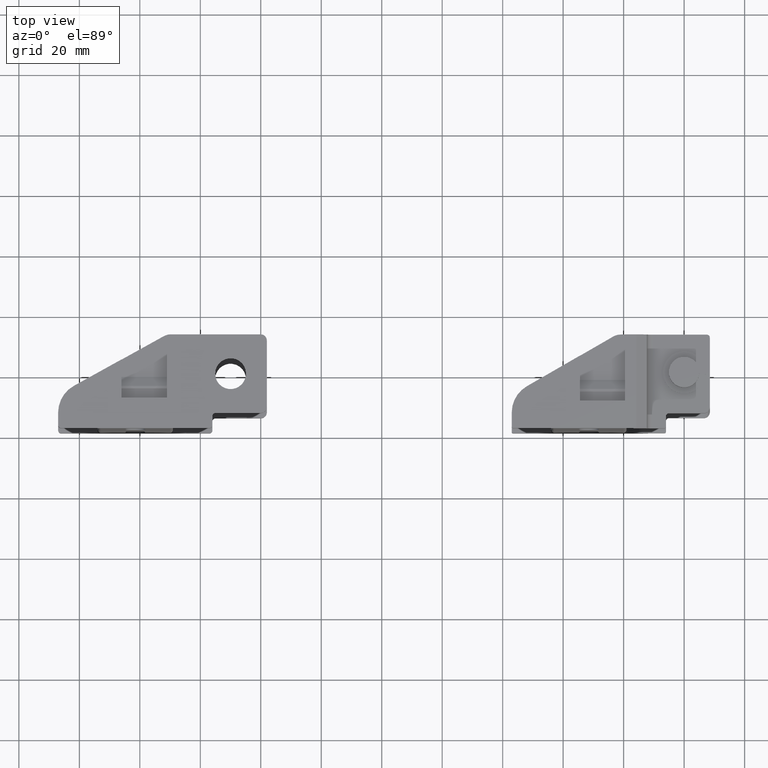
[diagram: clean part render]
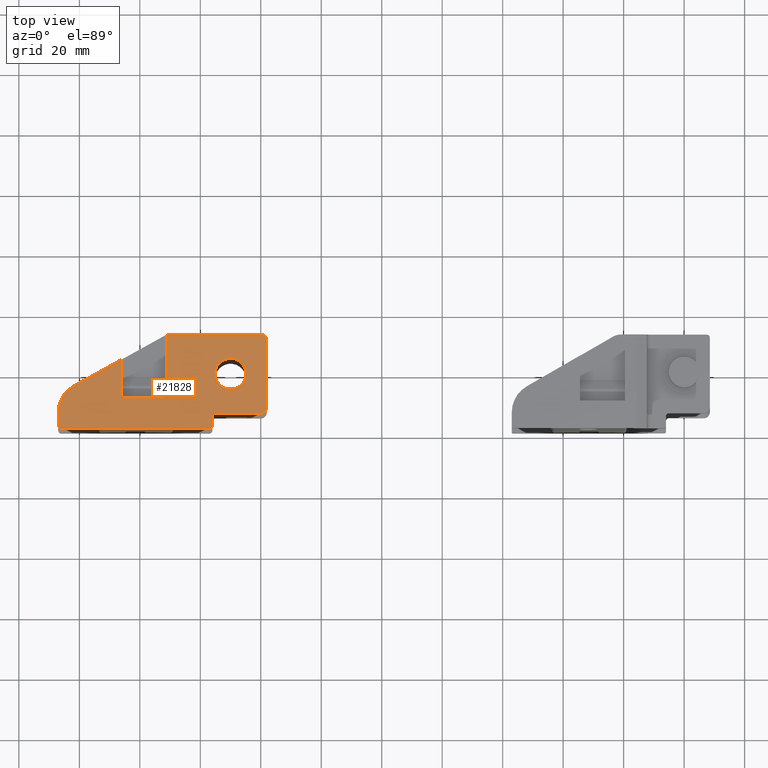
[diagram: same view with one face highlighted and labeled with its STEP entity id]
A machine part, top view. The second image highlights one B-rep face of the part: STEP entity #21828.
In plain terms, the highlighted planar face has unit normal (0, 0, 1).
Its self-contained STEP definition (entity closure, byte-faithful):
#159 = CARTESIAN_POINT ( 'NONE',  ( -137.9999999999999716, 10.49999999999999822, 52.50000000000000711 ) ) ;
#217 = EDGE_CURVE ( 'NONE', #4094, #23349, #16264, .T. ) ;
#258 = DIRECTION ( 'NONE',  ( 0.000000000000000000, 1.000000000000000000, 0.000000000000000000 ) ) ;
#763 = EDGE_LOOP ( 'NONE', ( #911 ) ) ;
#794 = VECTOR ( 'NONE', #22860, 1000.000000000000000 ) ;
#881 = EDGE_LOOP ( 'NONE', ( #17347, #5475, #22748, #17102, #5760, #4768, #21252, #18897, #16718, #8381, #18245, #12936, #17340, #4201, #9770, #12823, #14052 ) ) ;
#911 = ORIENTED_EDGE ( 'NONE', *, *, #11107, .T. ) ;
#1015 = LINE ( 'NONE', #17470, #10334 ) ;
#1198 = LINE ( 'NONE', #17316, #18193 ) ;
#1230 = VERTEX_POINT ( 'NONE', #20516 ) ;
#1458 = EDGE_CURVE ( 'NONE', #12134, #1230, #10462, .T. ) ;
#1605 = VERTEX_POINT ( 'NONE', #18581 ) ;
#1630 = CARTESIAN_POINT ( 'NONE',  ( -155.9999999999999716, -14.49999999999999822, 52.50000000000000711 ) ) ;
#1642 = VECTOR ( 'NONE', #8900, 1000.000000000000000 ) ;
#1915 = FACE_OUTER_BOUND ( 'NONE', #881, .T. ) ;
#2025 = EDGE_CURVE ( 'NONE', #16472, #17944, #4279, .T. ) ;
#2161 = CARTESIAN_POINT ( 'NONE',  ( -186.0999999999999943, 4.185364228208289461, 52.50000000000000711 ) ) ;
#2221 = CARTESIAN_POINT ( 'NONE',  ( -155.9999999999999716, -14.49999999999999822, 52.50000000000000711 ) ) ;
#2351 = VERTEX_POINT ( 'NONE', #2221 ) ;
#2370 = CIRCLE ( 'NONE', #15672, 10.00000000000071054 ) ;
#2527 = VECTOR ( 'NONE', #5725, 1000.000000000000000 ) ;
#2600 = VERTEX_POINT ( 'NONE', #15907 ) ;
#2811 = VERTEX_POINT ( 'NONE', #15182 ) ;
#2812 = VECTOR ( 'NONE', #14942, 1000.000000000000227 ) ;
#3091 = DIRECTION ( 'NONE',  ( 7.438494265013675240E-13, 1.000000000000000000, 0.000000000000000000 ) ) ;
#3095 = CARTESIAN_POINT ( 'NONE',  ( -149.9999999999999716, -0.5000000000000004441, 52.50000000000000711 ) ) ;
#3219 = DIRECTION ( 'NONE',  ( -1.000000000000000000, 0.000000000000000000, 0.000000000000000000 ) ) ;
#3355 = AXIS2_PLACEMENT_3D ( 'NONE', #3095, #7025, #3219 ) ;
#3409 = EDGE_CURVE ( 'NONE', #10348, #4094, #2370, .T. ) ;
#3451 = VECTOR ( 'NONE', #5922, 1000.000000000000000 ) ;
#3616 = CARTESIAN_POINT ( 'NONE',  ( -140.0000000000002842, 10.49999999999968026, 52.50000000000000711 ) ) ;
#3776 = LINE ( 'NONE', #22016, #3451 ) ;
#3959 = CARTESIAN_POINT ( 'NONE',  ( -155.0000000000006537, -14.49999999999929834, 52.50000000000000711 ) ) ;
#4076 = DIRECTION ( 'NONE',  ( 0.000000000000000000, -1.000000000000000000, 0.000000000000000000 ) ) ;
#4094 = VERTEX_POINT ( 'NONE', #18604 ) ;
#4201 = ORIENTED_EDGE ( 'NONE', *, *, #2025, .F. ) ;
#4279 = LINE ( 'NONE', #20736, #794 ) ;
#4317 = EDGE_CURVE ( 'NONE', #2351, #22924, #10338, .T. ) ;
#4351 = CARTESIAN_POINT ( 'NONE',  ( -206.0000000000000000, -18.50000000000000355, 52.50000000000000711 ) ) ;
#4373 = DIRECTION ( 'NONE',  ( 0.000000000000000000, 1.000000000000000000, 0.000000000000000000 ) ) ;
#4768 = ORIENTED_EDGE ( 'NONE', *, *, #9221, .F. ) ;
#4960 = LINE ( 'NONE', #12198, #22654 ) ;
#5475 = ORIENTED_EDGE ( 'NONE', *, *, #217, .F. ) ;
#5725 = DIRECTION ( 'NONE',  ( -1.000000000000000000, 0.000000000000000000, 0.000000000000000000 ) ) ;
#5760 = ORIENTED_EDGE ( 'NONE', *, *, #11039, .F. ) ;
#5922 = DIRECTION ( 'NONE',  ( 0.000000000000000000, -1.000000000000000000, 0.000000000000000000 ) ) ;
#6021 = CARTESIAN_POINT ( 'NONE',  ( -139.9999999999999716, 12.49999999999999645, 52.50000000000000711 ) ) ;
#6288 = EDGE_CURVE ( 'NONE', #6387, #2351, #10026, .T. ) ;
#6387 = VERTEX_POINT ( 'NONE', #10477 ) ;
#6724 = CARTESIAN_POINT ( 'NONE',  ( -156.9999999999999716, -18.50000000000000355, 52.50000000000000711 ) ) ;
#6787 = AXIS2_PLACEMENT_3D ( 'NONE', #16070, #16195, #16315 ) ;
#7025 = DIRECTION ( 'NONE',  ( 0.000000000000000000, 0.000000000000000000, -1.000000000000000000 ) ) ;
#7085 = VERTEX_POINT ( 'NONE', #19235 ) ;
#8093 = CIRCLE ( 'NONE', #15686, 0.9999999999993069988 ) ;
#8337 = CARTESIAN_POINT ( 'NONE',  ( -156.9999999999993179, -17.50000000000070344, 52.50000000000000711 ) ) ;
#8381 = ORIENTED_EDGE ( 'NONE', *, *, #14447, .F. ) ;
#8714 = DIRECTION ( 'NONE',  ( 1.000000000000000000, 0.000000000000000000, 0.000000000000000000 ) ) ;
#8900 = DIRECTION ( 'NONE',  ( 0.000000000000000000, -1.000000000000000000, 0.000000000000000000 ) ) ;
#9221 = EDGE_CURVE ( 'NONE', #10612, #11557, #1198, .T. ) ;
#9413 = LINE ( 'NONE', #22066, #2527 ) ;
#9472 = CARTESIAN_POINT ( 'NONE',  ( -201.8480962024629832, -4.543948039966001495, 52.50000000000000711 ) ) ;
#9476 = EDGE_CURVE ( 'NONE', #23082, #12134, #9890, .T. ) ;
#9770 = ORIENTED_EDGE ( 'NONE', *, *, #18367, .F. ) ;
#9890 = LINE ( 'NONE', #22660, #12099 ) ;
#10026 = CIRCLE ( 'NONE', #14969, 0.9999999999993069988 ) ;
#10334 = VECTOR ( 'NONE', #4373, 1000.000000000000000 ) ;
#10338 = LINE ( 'NONE', #1630, #1642 ) ;
#10348 = VERTEX_POINT ( 'NONE', #18058 ) ;
#10462 = CIRCLE ( 'NONE', #13510, 2.000000000000324629 ) ;
#10477 = CARTESIAN_POINT ( 'NONE',  ( -154.9999999999999716, -13.49999999999999822, 52.50000000000000711 ) ) ;
#10479 = DIRECTION ( 'NONE',  ( 0.000000000000000000, 0.000000000000000000, -1.000000000000000000 ) ) ;
#10612 = VERTEX_POINT ( 'NONE', #6724 ) ;
#10805 = EDGE_CURVE ( 'NONE', #2600, #23349, #22328, .T. ) ;
#11039 = EDGE_CURVE ( 'NONE', #11557, #2811, #11733, .T. ) ;
#11107 = EDGE_CURVE ( 'NONE', #19149, #19149, #20492, .T. ) ;
#11557 = VERTEX_POINT ( 'NONE', #4351 ) ;
#11609 = EDGE_CURVE ( 'NONE', #17944, #23082, #20135, .T. ) ;
#11733 = CIRCLE ( 'NONE', #6787, 0.9999999999984465759 ) ;
#11799 = DIRECTION ( 'NONE',  ( 0.000000000000000000, 0.000000000000000000, -1.000000000000000000 ) ) ;
#12099 = VECTOR ( 'NONE', #4076, 1000.000000000000000 ) ;
#12109 = AXIS2_PLACEMENT_3D ( 'NONE', #3616, #16345, #12411 ) ;
#12134 = VERTEX_POINT ( 'NONE', #23315 ) ;
#12198 = CARTESIAN_POINT ( 'NONE',  ( -171.0999999999999659, -8.500000000000000000, 52.50000000000000711 ) ) ;
#12411 = DIRECTION ( 'NONE',  ( 1.000000000000000000, 1.630640067417925786E-13, 0.000000000000000000 ) ) ;
#12469 = CARTESIAN_POINT ( 'NONE',  ( -140.0000000000002842, -11.49999999999967670, 52.50000000000000711 ) ) ;
#12581 = DIRECTION ( 'NONE',  ( 0.000000000000000000, 0.000000000000000000, -1.000000000000000000 ) ) ;
#12823 = ORIENTED_EDGE ( 'NONE', *, *, #16686, .T. ) ;
#12870 = DIRECTION ( 'NONE',  ( 0.000000000000000000, 0.000000000000000000, 1.000000000000000000 ) ) ;
#12936 = ORIENTED_EDGE ( 'NONE', *, *, #9476, .F. ) ;
#13005 = AXIS2_PLACEMENT_3D ( 'NONE', #13585, #11799, #3091 ) ;
#13510 = AXIS2_PLACEMENT_3D ( 'NONE', #12469, #12581, #16535 ) ;
#13585 = CARTESIAN_POINT ( 'NONE',  ( -169.8069120782247410, 7.500000000016888713, 52.50000000000000711 ) ) ;
#13749 = CARTESIAN_POINT ( 'NONE',  ( -155.9999999999999716, -17.50000000000000000, 52.50000000000000711 ) ) ;
#14052 = ORIENTED_EDGE ( 'NONE', *, *, #22841, .T. ) ;
#14147 = CIRCLE ( 'NONE', #13005, 4.999999999983110399 ) ;
#14347 = DIRECTION ( 'NONE',  ( -0.4848096202463364479, 0.8746197071393961853, 0.000000000000000000 ) ) ;
#14447 = EDGE_CURVE ( 'NONE', #1230, #6387, #9413, .T. ) ;
#14776 = DIRECTION ( 'NONE',  ( -6.938893903912036769E-13, -1.000000000000000000, 0.000000000000000000 ) ) ;
#14942 = DIRECTION ( 'NONE',  ( 0.8746197071393941869, 0.4848096202463400006, 0.000000000000000000 ) ) ;
#14969 = AXIS2_PLACEMENT_3D ( 'NONE', #3959, #12870, #14776 ) ;
#15092 = CARTESIAN_POINT ( 'NONE',  ( -155.0999999999999659, -0.5000000000000004441, 52.50000000000000711 ) ) ;
#15182 = CARTESIAN_POINT ( 'NONE',  ( -207.0000000000000000, -17.50000000000000000, 52.50000000000000711 ) ) ;
#15672 = AXIS2_PLACEMENT_3D ( 'NONE', #22950, #16140, #14347 ) ;
#15686 = AXIS2_PLACEMENT_3D ( 'NONE', #8337, #10479, #21456 ) ;
#15907 = CARTESIAN_POINT ( 'NONE',  ( -186.0999999999999943, -8.500000000000000000, 52.50000000000000711 ) ) ;
#16070 = CARTESIAN_POINT ( 'NONE',  ( -206.0000000000014779, -17.50000000000155609, 52.50000000000000711 ) ) ;
#16140 = DIRECTION ( 'NONE',  ( 0.000000000000000000, 0.000000000000000000, -1.000000000000000000 ) ) ;
#16195 = DIRECTION ( 'NONE',  ( 0.000000000000000000, 0.000000000000000000, -1.000000000000000000 ) ) ;
#16264 = LINE ( 'NONE', #9472, #2812 ) ;
#16315 = DIRECTION ( 'NONE',  ( -1.000000000000000000, 1.543903893621756653E-12, 0.000000000000000000 ) ) ;
#16345 = DIRECTION ( 'NONE',  ( 0.000000000000000000, 0.000000000000000000, -1.000000000000000000 ) ) ;
#16472 = VERTEX_POINT ( 'NONE', #17835 ) ;
#16535 = DIRECTION ( 'NONE',  ( 1.665334536937464452E-13, -1.000000000000000000, 0.000000000000000000 ) ) ;
#16686 = EDGE_CURVE ( 'NONE', #1605, #7085, #3776, .T. ) ;
#16718 = ORIENTED_EDGE ( 'NONE', *, *, #6288, .F. ) ;
#17102 = ORIENTED_EDGE ( 'NONE', *, *, #17703, .F. ) ;
#17316 = CARTESIAN_POINT ( 'NONE',  ( -156.9999999999999716, -18.50000000000000355, 52.50000000000000711 ) ) ;
#17340 = ORIENTED_EDGE ( 'NONE', *, *, #11609, .F. ) ;
#17347 = ORIENTED_EDGE ( 'NONE', *, *, #10805, .T. ) ;
#17470 = CARTESIAN_POINT ( 'NONE',  ( -207.0000000000000000, -17.50000000000000000, 52.50000000000000711 ) ) ;
#17692 = DIRECTION ( 'NONE',  ( -1.000000000000000000, 0.000000000000000000, 0.000000000000000000 ) ) ;
#17703 = EDGE_CURVE ( 'NONE', #2811, #10348, #1015, .T. ) ;
#17779 = PLANE ( 'NONE',  #21471 ) ;
#17835 = CARTESIAN_POINT ( 'NONE',  ( -169.8069120782209609, 12.49999999999999645, 52.50000000000000711 ) ) ;
#17944 = VERTEX_POINT ( 'NONE', #6021 ) ;
#18058 = CARTESIAN_POINT ( 'NONE',  ( -207.0000000000000000, -13.29014511136000110, 52.50000000000000711 ) ) ;
#18148 = CARTESIAN_POINT ( 'NONE',  ( -169.7609931155167260, -4.846116802177967031, 52.50000000000000711 ) ) ;
#18193 = VECTOR ( 'NONE', #21141, 1000.000000000000000 ) ;
#18245 = ORIENTED_EDGE ( 'NONE', *, *, #1458, .F. ) ;
#18367 = EDGE_CURVE ( 'NONE', #1605, #16472, #14147, .T. ) ;
#18492 = EDGE_CURVE ( 'NONE', #22924, #10612, #8093, .T. ) ;
#18581 = CARTESIAN_POINT ( 'NONE',  ( -171.0999999999999659, 12.32989892508663843, 52.50000000000000711 ) ) ;
#18604 = CARTESIAN_POINT ( 'NONE',  ( -201.8480962024629832, -4.543948039966001495, 52.50000000000000711 ) ) ;
#18897 = ORIENTED_EDGE ( 'NONE', *, *, #4317, .F. ) ;
#19149 = VERTEX_POINT ( 'NONE', #15092 ) ;
#19235 = CARTESIAN_POINT ( 'NONE',  ( -171.0999999999999659, -8.500000000000000000, 52.50000000000000711 ) ) ;
#19814 = FACE_BOUND ( 'NONE', #763, .T. ) ;
#20135 = CIRCLE ( 'NONE', #12109, 2.000000000000334843 ) ;
#20492 = CIRCLE ( 'NONE', #3355, 5.099999999999993427 ) ;
#20516 = CARTESIAN_POINT ( 'NONE',  ( -139.9999999999999716, -13.49999999999999822, 52.50000000000000711 ) ) ;
#20736 = CARTESIAN_POINT ( 'NONE',  ( -169.8069120782209609, 12.49999999999999645, 52.50000000000000711 ) ) ;
#21141 = DIRECTION ( 'NONE',  ( -1.000000000000000000, 0.000000000000000000, 0.000000000000000000 ) ) ;
#21252 = ORIENTED_EDGE ( 'NONE', *, *, #18492, .F. ) ;
#21456 = DIRECTION ( 'NONE',  ( -6.938893903912036769E-13, -1.000000000000000000, 0.000000000000000000 ) ) ;
#21471 = AXIS2_PLACEMENT_3D ( 'NONE', #18148, #23260, #8714 ) ;
#21618 = VECTOR ( 'NONE', #258, 1000.000000000000000 ) ;
#21828 = ADVANCED_FACE ( 'NONE', ( #19814, #1915 ), #17779, .T. ) ;
#22016 = CARTESIAN_POINT ( 'NONE',  ( -171.0999999999999659, 12.32989892508663843, 52.50000000000000711 ) ) ;
#22066 = CARTESIAN_POINT ( 'NONE',  ( -139.9999999999999716, -13.49999999999999822, 52.50000000000000711 ) ) ;
#22328 = LINE ( 'NONE', #22440, #21618 ) ;
#22440 = CARTESIAN_POINT ( 'NONE',  ( -186.0999999999999943, -8.500000000000000000, 52.50000000000000711 ) ) ;
#22654 = VECTOR ( 'NONE', #17692, 1000.000000000000000 ) ;
#22660 = CARTESIAN_POINT ( 'NONE',  ( -137.9999999999999716, 10.49999999999999822, 52.50000000000000711 ) ) ;
#22748 = ORIENTED_EDGE ( 'NONE', *, *, #3409, .F. ) ;
#22841 = EDGE_CURVE ( 'NONE', #7085, #2600, #4960, .T. ) ;
#22860 = DIRECTION ( 'NONE',  ( 1.000000000000000000, 0.000000000000000000, 0.000000000000000000 ) ) ;
#22924 = VERTEX_POINT ( 'NONE', #13749 ) ;
#22950 = CARTESIAN_POINT ( 'NONE',  ( -196.9999999999992895, -13.29014511136056242, 52.50000000000000711 ) ) ;
#23082 = VERTEX_POINT ( 'NONE', #159 ) ;
#23260 = DIRECTION ( 'NONE',  ( 0.000000000000000000, 0.000000000000000000, 1.000000000000000000 ) ) ;
#23315 = CARTESIAN_POINT ( 'NONE',  ( -137.9999999999999716, -11.49999999999999645, 52.50000000000000711 ) ) ;
#23349 = VERTEX_POINT ( 'NONE', #2161 ) ;